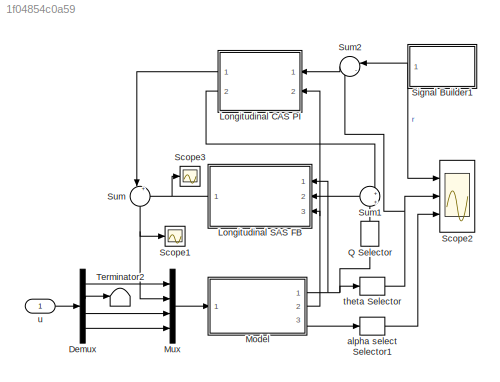
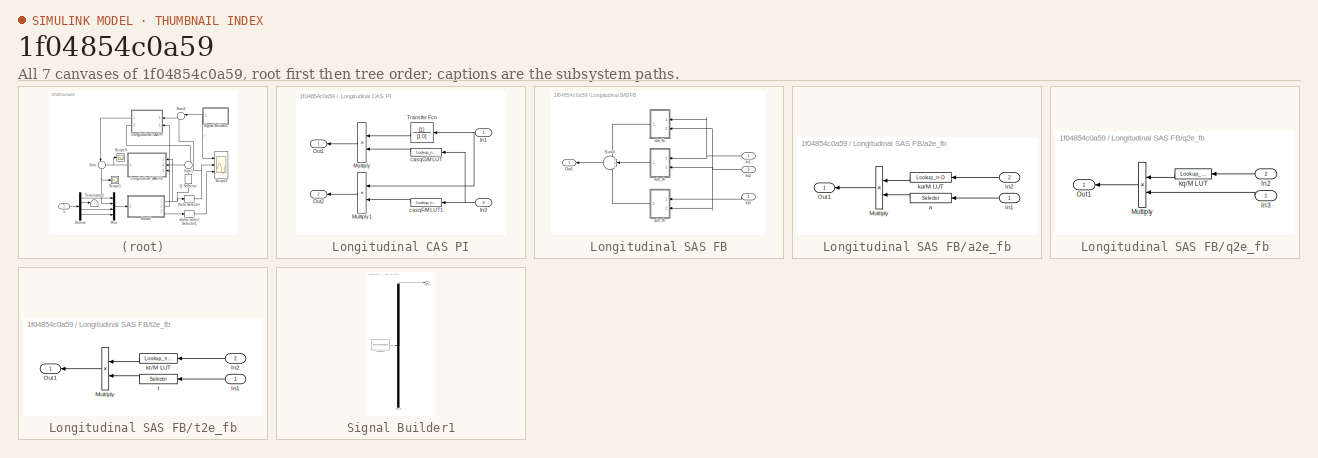
[diagram: thumbnail index - all 7 canvases of the model, root first then tree order]
MODEL slx_1f04854c0a59
KIND model
CONFIG AbsTol = auto
CONFIG EnableMultiTasking = off
CONFIG FixedStep = auto
CONFIG MaxStep = auto
CONFIG MinStep = auto
CONFIG RelTol = 1e-3
CONFIG SampleTimeConstraint = Unconstrained
CONFIG Solver = VariableStepAuto
CONFIG SolverName = VariableStepAuto
CONFIG StartTime = 0.0
CONFIG StopTime = S.simtime
BLOCK [Demux] Demux
  DisplayOption = bar
  Ports = [1, 4]
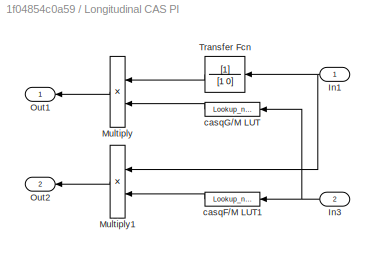
BLOCK [SubSystem] Longitudinal CAS PI
  Ports = [2, 2]
  RequestExecContextInheritance = off
BLOCK [Inport] Longitudinal CAS PI/In1
  IconDisplay = Port number
BLOCK [Inport] Longitudinal CAS PI/In3
  IconDisplay = Port number
  Port = 2
BLOCK [Product] Longitudinal CAS PI/Multiply
  InputSameDT = off
  OutDataTypeStr = Inherit: Inherit via internal rule
  Ports = [2, 1]
  RndMeth = Floor
  SaturateOnIntegerOverflow = off
BLOCK [Product] Longitudinal CAS PI/Multiply1
  InputSameDT = off
  OutDataTypeStr = Inherit: Inherit via internal rule
  Ports = [2, 1]
  RndMeth = Floor
  SaturateOnIntegerOverflow = off
BLOCK [Outport] Longitudinal CAS PI/Out1
  IconDisplay = Port number
BLOCK [Outport] Longitudinal CAS PI/Out2
  IconDisplay = Port number
  Port = 2
BLOCK [TransferFcn] Longitudinal CAS PI/Transfer Fcn
  Denominator = [1 0]
BLOCK [Lookup_n-D] Longitudinal CAS PI/casqF//M LUT1
  BreakpointsForDimension1 = S.M'
  InternalRulePriority = Speed
  NumberOfTableDimensions = 1
  Ports = [1, 1]
  RndMeth = Simplest
  Table = S.casqFLUT
BLOCK [Lookup_n-D] Longitudinal CAS PI/casqG//M LUT
  BreakpointsForDimension1 = S.M'
  InternalRulePriority = Speed
  NumberOfTableDimensions = 1
  Ports = [1, 1]
  RndMeth = Simplest
  Table = S.casqGLUT
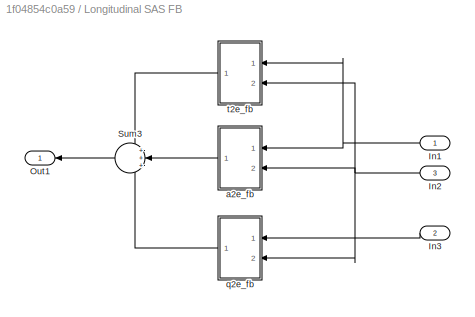
BLOCK [SubSystem] Longitudinal SAS FB
  Ports = [3, 1]
  RequestExecContextInheritance = off
BLOCK [Inport] Longitudinal SAS FB/In1
  IconDisplay = Port number
BLOCK [Inport] Longitudinal SAS FB/In2
  IconDisplay = Port number
  Port = 3
BLOCK [Inport] Longitudinal SAS FB/In3
  IconDisplay = Port number
  Port = 2
BLOCK [Outport] Longitudinal SAS FB/Out1
  IconDisplay = Port number
BLOCK [Sum] Longitudinal SAS FB/Sum3
  IconShape = round
  InputSameDT = off
  Inputs = +++
  OutDataTypeStr = Inherit: Inherit via internal rule
  Ports = [3, 1]
  SaturateOnIntegerOverflow = off
BLOCK [SubSystem] Longitudinal SAS FB/a2e_fb
  Ports = [2, 1]
  RequestExecContextInheritance = off
BLOCK [Inport] Longitudinal SAS FB/a2e_fb/In1
  IconDisplay = Port number
BLOCK [Inport] Longitudinal SAS FB/a2e_fb/In2
  IconDisplay = Port number
  Port = 2
BLOCK [Product] Longitudinal SAS FB/a2e_fb/Multiply
  InputSameDT = off
  OutDataTypeStr = Inherit: Inherit via internal rule
  Ports = [2, 1]
  RndMeth = Floor
  SaturateOnIntegerOverflow = off
BLOCK [Outport] Longitudinal SAS FB/a2e_fb/Out1
  IconDisplay = Port number
BLOCK [Selector] Longitudinal SAS FB/a2e_fb/a
  IndexOptions = Index vector (dialog)
  Indices = [2]
  InputPortWidth = 12
  OutputSizes = 1
  Ports = [1, 1]
BLOCK [Lookup_n-D] Longitudinal SAS FB/a2e_fb/ka//M LUT
  BreakpointsForDimension1 = S.M'
  InternalRulePriority = Speed
  NumberOfTableDimensions = 1
  Ports = [1, 1]
  RndMeth = Simplest
  Table = S.kaLUT2
BLOCK [SubSystem] Longitudinal SAS FB/q2e_fb
  Ports = [2, 1]
  RequestExecContextInheritance = off
BLOCK [Inport] Longitudinal SAS FB/q2e_fb/In2
  IconDisplay = Port number
  Port = 2
BLOCK [Inport] Longitudinal SAS FB/q2e_fb/In3
  IconDisplay = Port number
BLOCK [Product] Longitudinal SAS FB/q2e_fb/Multiply
  InputSameDT = off
  OutDataTypeStr = Inherit: Inherit via internal rule
  Ports = [2, 1]
  RndMeth = Floor
  SaturateOnIntegerOverflow = off
BLOCK [Outport] Longitudinal SAS FB/q2e_fb/Out1
  IconDisplay = Port number
BLOCK [Lookup_n-D] Longitudinal SAS FB/q2e_fb/kq//M LUT
  BreakpointsForDimension1 = S.M'
  InternalRulePriority = Speed
  NumberOfTableDimensions = 1
  Ports = [1, 1]
  RndMeth = Simplest
  Table = S.kqLUT2
BLOCK [SubSystem] Longitudinal SAS FB/t2e_fb
  Ports = [2, 1]
  RequestExecContextInheritance = off
BLOCK [Inport] Longitudinal SAS FB/t2e_fb/In1
  IconDisplay = Port number
BLOCK [Inport] Longitudinal SAS FB/t2e_fb/In2
  IconDisplay = Port number
  Port = 2
BLOCK [Product] Longitudinal SAS FB/t2e_fb/Multiply
  InputSameDT = off
  OutDataTypeStr = Inherit: Inherit via internal rule
  Ports = [2, 1]
  RndMeth = Floor
  SaturateOnIntegerOverflow = off
BLOCK [Outport] Longitudinal SAS FB/t2e_fb/Out1
  IconDisplay = Port number
BLOCK [Lookup_n-D] Longitudinal SAS FB/t2e_fb/kt//M LUT
  BreakpointsForDimension1 = S.M'
  InternalRulePriority = Speed
  NumberOfTableDimensions = 1
  Ports = [1, 1]
  RndMeth = Simplest
  Table = S.ktLUT2
BLOCK [Selector] Longitudinal SAS FB/t2e_fb/t
  IndexOptions = Index vector (dialog)
  Indices = [5]
  InputPortWidth = 12
  OutputSizes = 1
  Ports = [1, 1]
BLOCK [ModelReference] Model
  ModelNameDialog = B737_PLANT
  ModelReferenceVersion = 1.6
  Ports = [1, 3]
BLOCK [Mux] Mux
  DisplayOption = bar
  Ports = [4, 1]
BLOCK [Selector] Q Selector
  IndexOptions = Index vector (dialog)
  Indices = [8]
  InputPortWidth = 12
  OutputSizes = 1
  Ports = [1, 1]
BLOCK [Scope] Scope1
  Floating = off
  NumInputPorts = 1
  Ports = [1]
  ScopeSpecificationString = Simulink.scopes.TimeScopeBlockCfg('CurrentConfiguration', extmgr.ConfigurationSet(extmgr.Configuration('Core','General UI',true),extmgr.Configuration('Core','Source UI',true),extmgr.Configuration('Sources','WiredSimulink',true,'DataLoggingVariableName','ScopeData1'),extmgr.Configuration('Visuals','Time Domain',true,'SerializedDisplays',{struct('MinYLimReal','-6.24414','MaxYLimReal','8.47563','YLab...<+1433ch>
BLOCK [Scope] Scope2
  Floating = off
  NumInputPorts = 3
  Ports = [3]
  ScopeSpecificationString = Simulink.scopes.TimeScopeBlockCfg('CurrentConfiguration', extmgr.ConfigurationSet(extmgr.Configuration('Core','General UI',true),extmgr.Configuration('Core','Source UI',true),extmgr.Configuration('Sources','WiredSimulink',true,'DataLoggingVariableName','ScopeData2'),extmgr.Configuration('Visuals','Time Domain',true,'SerializedDisplays',{struct('MinYLimReal','28266.36622','MaxYLimReal','29361.17682...<+1505ch>
BLOCK [Scope] Scope3
  Floating = off
  NumInputPorts = 1
  Ports = [1]
  ScopeSpecificationString = Simulink.scopes.TimeScopeBlockCfg('CurrentConfiguration', extmgr.ConfigurationSet(extmgr.Configuration('Core','General UI',true),extmgr.Configuration('Core','Source UI',true),extmgr.Configuration('Sources','WiredSimulink',true,'DataLoggingVariableName','ScopeData1'),extmgr.Configuration('Visuals','Time Domain',true,'SerializedDisplays',{struct('MinYLimReal','-6.24414','MaxYLimReal','8.47563','YLab...<+1449ch>
BLOCK [SubSystem] Signal Builder1
  ClipboardFcn = sigbuilder_block('clipboard');
  CloseFcn = sigbuilder_block('close');
  ContinueFcn = sigbuilder_block('continue');
  CopyFcn = sigbuilder_block('copy');
  DeleteFcn = sigbuilder_block('delete');
  LoadFcn = sigbuilder_block('load');
  MaskHideContents = on
  ModelCloseFcn = sigbuilder_block('modelClose');
  NameChangeFcn = sigbuilder_block('namechange');
  OpenFcn = sigbuilder_block('open',[233.25 91.5 964.5 399.75 ]);
  PauseFcn = sigbuilder_block('pause');
  Ports = [0, 1]
  PreSaveFcn = sigbuilder_block('preSave');
  RequestExecContextInheritance = off
  StartFcn = sigbuilder_block('start');
  StopFcn = sigbuilder_block('stop');
  Tag = STV Subsys
BLOCK [Demux] Signal Builder1/Demux
  Outputs = 1
  Ports = [1, 1]
  Tag = STV Demux
BLOCK [FromWorkspace] Signal Builder1/FromWs
  SampleTime = 0
  Tag = STV FromWs
  VariableName = tuvar
  ZeroCross = on
BLOCK [Outport] Signal Builder1/theta_c
  IconDisplay = Port number
  Tag = STV Outport
BLOCK [Sum] Sum
  IconShape = round
  InputSameDT = off
  Inputs = |++
  OutDataTypeStr = Inherit: Inherit via internal rule
  Ports = [2, 1]
  SaturateOnIntegerOverflow = off
BLOCK [Sum] Sum1
  IconShape = round
  InputSameDT = off
  Inputs = +|+
  OutDataTypeStr = Inherit: Inherit via internal rule
  Ports = [2, 1]
  SaturateOnIntegerOverflow = off
BLOCK [Sum] Sum2
  IconShape = round
  InputSameDT = off
  Inputs = |-+
  OutDataTypeStr = Inherit: Inherit via internal rule
  Ports = [2, 1]
  SaturateOnIntegerOverflow = off
BLOCK [Terminator] Terminator2
BLOCK [Selector] alpha select Selector1
  IndexOptions = Index vector (dialog)
  Indices = [12]
  InputPortWidth = 12
  OutputSizes = 1
  Ports = [1, 1]
BLOCK [Selector] theta Selector
  IndexOptions = Index vector (dialog)
  Indices = [5]
  InputPortWidth = 12
  OutputSizes = 1
  Ports = [1, 1]
BLOCK [Inport] u
  IconDisplay = Port number
LINE Demux:1 -> Mux:1
LINE Demux:2 -> Terminator2:1
LINE Demux:3 -> Mux:3
LINE Demux:4 -> Mux:4
NET Longitudinal CAS PI/In1:1 -> Longitudinal CAS PI/Multiply1:1, Longitudinal CAS PI/Transfer Fcn:1
NET Longitudinal CAS PI/In3:1 -> Longitudinal CAS PI/casqF//M LUT1:1, Longitudinal CAS PI/casqG//M LUT:1
LINE Longitudinal CAS PI/Multiply1:1 -> Longitudinal CAS PI/Out2:1
LINE Longitudinal CAS PI/Multiply:1 -> Longitudinal CAS PI/Out1:1
LINE Longitudinal CAS PI/Transfer Fcn:1 -> Longitudinal CAS PI/Multiply:1
LINE Longitudinal CAS PI/casqF//M LUT1:1 -> Longitudinal CAS PI/Multiply1:2
LINE Longitudinal CAS PI/casqG//M LUT:1 -> Longitudinal CAS PI/Multiply:2
LINE Longitudinal CAS PI:1 -> Sum:1
LINE Longitudinal CAS PI:2 -> Sum1:1
NET Longitudinal SAS FB/In1:1 -> Longitudinal SAS FB/a2e_fb:1, Longitudinal SAS FB/t2e_fb:1
NET Longitudinal SAS FB/In2:1 -> Longitudinal SAS FB/a2e_fb:2, Longitudinal SAS FB/q2e_fb:2, Longitudinal SAS FB/t2e_fb:2
LINE Longitudinal SAS FB/In3:1 -> Longitudinal SAS FB/q2e_fb:1
LINE Longitudinal SAS FB/Sum3:1 -> Longitudinal SAS FB/Out1:1
LINE Longitudinal SAS FB/a2e_fb/In1:1 -> Longitudinal SAS FB/a2e_fb/a:1
LINE Longitudinal SAS FB/a2e_fb/In2:1 -> Longitudinal SAS FB/a2e_fb/ka//M LUT:1
LINE Longitudinal SAS FB/a2e_fb/Multiply:1 -> Longitudinal SAS FB/a2e_fb/Out1:1
LINE Longitudinal SAS FB/a2e_fb/a:1 -> Longitudinal SAS FB/a2e_fb/Multiply:2
LINE Longitudinal SAS FB/a2e_fb/ka//M LUT:1 -> Longitudinal SAS FB/a2e_fb/Multiply:1
LINE Longitudinal SAS FB/a2e_fb:1 -> Longitudinal SAS FB/Sum3:2
LINE Longitudinal SAS FB/q2e_fb/In2:1 -> Longitudinal SAS FB/q2e_fb/kq//M LUT:1
LINE Longitudinal SAS FB/q2e_fb/In3:1 -> Longitudinal SAS FB/q2e_fb/Multiply:2
LINE Longitudinal SAS FB/q2e_fb/Multiply:1 -> Longitudinal SAS FB/q2e_fb/Out1:1
LINE Longitudinal SAS FB/q2e_fb/kq//M LUT:1 -> Longitudinal SAS FB/q2e_fb/Multiply:1
LINE Longitudinal SAS FB/q2e_fb:1 -> Longitudinal SAS FB/Sum3:3
LINE Longitudinal SAS FB/t2e_fb/In1:1 -> Longitudinal SAS FB/t2e_fb/t:1
LINE Longitudinal SAS FB/t2e_fb/In2:1 -> Longitudinal SAS FB/t2e_fb/kt//M LUT:1
LINE Longitudinal SAS FB/t2e_fb/Multiply:1 -> Longitudinal SAS FB/t2e_fb/Out1:1
LINE Longitudinal SAS FB/t2e_fb/kt//M LUT:1 -> Longitudinal SAS FB/t2e_fb/Multiply:1
LINE Longitudinal SAS FB/t2e_fb/t:1 -> Longitudinal SAS FB/t2e_fb/Multiply:2
LINE Longitudinal SAS FB/t2e_fb:1 -> Longitudinal SAS FB/Sum3:1
NET Longitudinal SAS FB:1 -> Scope3:1, Sum:2
NET Model:1 -> Longitudinal SAS FB:1, Q Selector:1, theta Selector:1
NET Model:2 -> Longitudinal CAS PI:2, Longitudinal SAS FB:3
LINE Model:3 -> alpha select Selector1:1
LINE Mux:1 -> Model:1
LINE Q Selector:1 -> Sum1:2
NET Signal Builder1:1 -> Scope2:1, Sum2:1
LINE Sum1:1 -> Longitudinal SAS FB:2
LINE Sum2:1 -> Longitudinal CAS PI:1
NET Sum:1 -> Mux:2, Scope1:1
LINE alpha select Selector1:1 -> Scope2:3
NET theta Selector:1 -> Scope2:2, Sum2:2
LINE u:1 -> Demux:1
note: NET lines group one-source signal fan-out (src -> all destinations, sorted); 1:1 wires keep LINE
